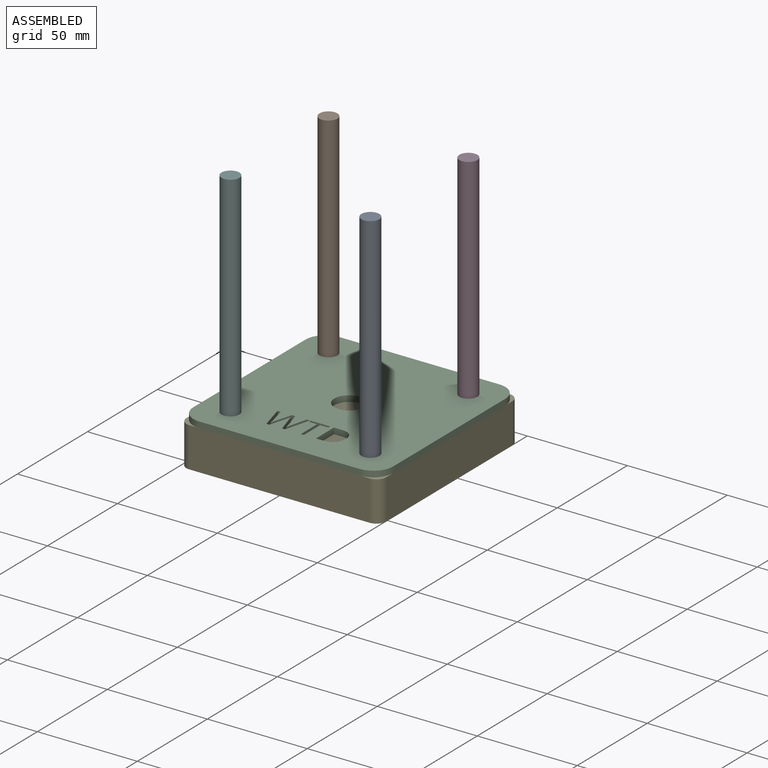
[diagram: assembled view]
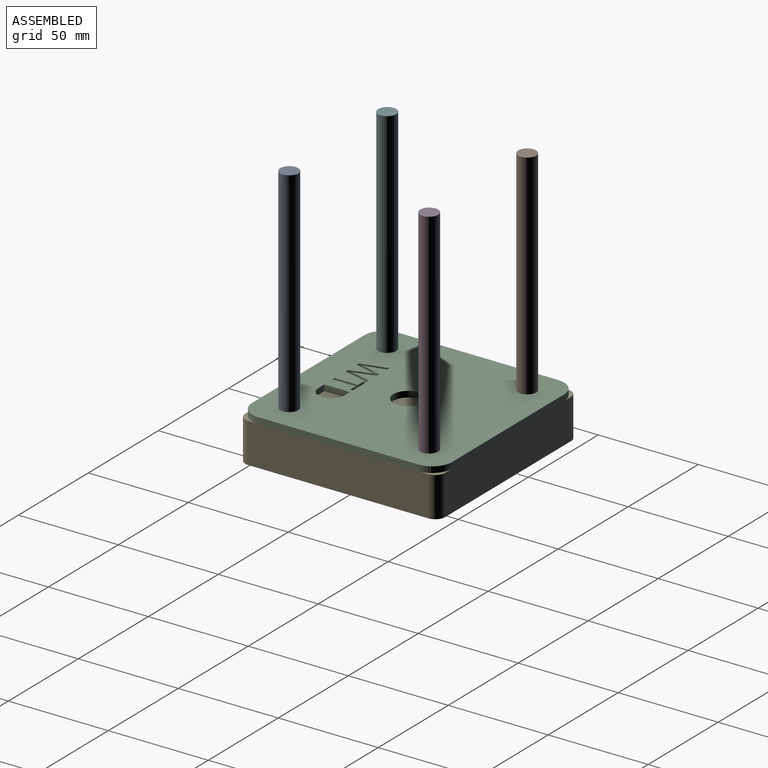
[diagram: assembled view, second angle]
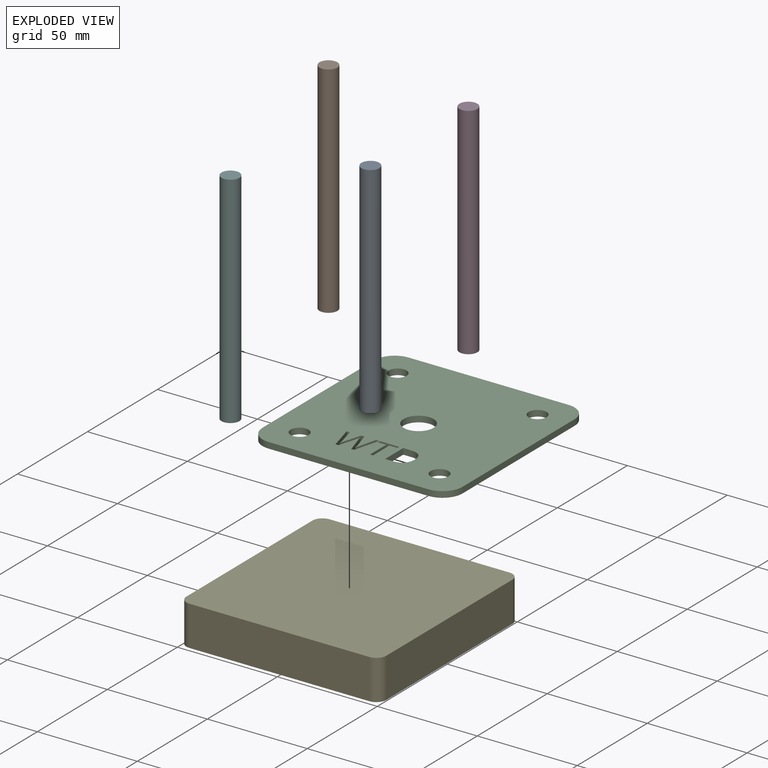
[diagram: exploded view]
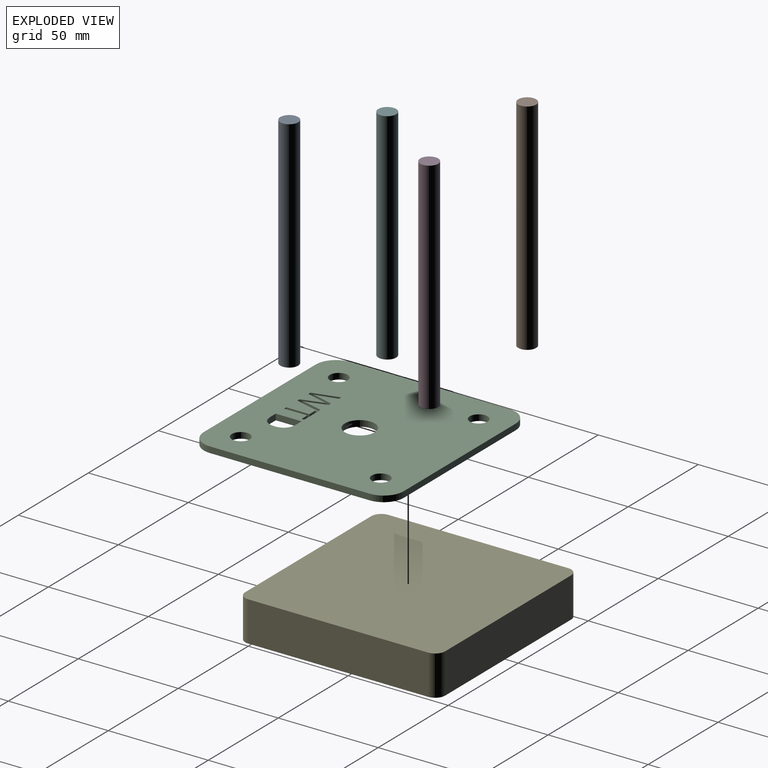
[diagram: exploded view, second angle]
ASSEMBLY  parts=6 mates=5
PART A: 3 faces, bbox 9x9x110 mm
  f0: cylinder r=4.5mm len=110mm, axis (0,0,-1), area 3110.2mm2, adj f1,f2
  f1: plane 9x9mm, normal (0,0,1), area 63.6mm2, adj f0
  f2: plane 9x9mm, normal (0,0,-1), area 63.6mm2, adj f0
PART B: same geometry as A
PART C: 50 faces, bbox 100x100x3 mm
  f0: plane 100x100mm, normal (0,0,1), area 9263.5mm2, adj f2,f3,f4,f5,f6,f7,f8,f9
  f1: plane 100x100mm, normal (0,0,-1), area 9263.5mm2, adj f2,f3,f4,f5,f6,f7,f8,f9
  f2: plane 80x3mm, normal (1,0,0), area 240mm2, adj f0,f1,f3,f10
  f3: cylinder r=10mm len=10mm, axis (0,0,-1), area 47.1mm2, adj f0,f1,f2,f4
  f4: plane 80x3mm, normal (0,1,0), area 240mm2, adj f0,f1,f3,f5
  f5: cylinder r=10mm len=10mm, axis (0,0,-1), area 47.1mm2, adj f0,f1,f4,f6
  f6: plane 80x3mm, normal (-1,0,0), area 240mm2, adj f0,f1,f5,f7
  f7: cylinder r=10mm len=10mm, axis (0,0,-1), area 47.1mm2, adj f0,f1,f6,f8
  f8: plane 80x3mm, normal (0,-1,0), area 240mm2, adj f0,f1,f7,f10
  f9: cylinder r=7.5mm len=15mm, axis (0,0,-1), area 141.4mm2, adj f0,f1
  f10: cylinder r=10mm len=10mm, axis (0,0,-1), area 47.1mm2, adj f0,f1,f2,f8
  f11: cylinder r=4.5mm len=9mm, axis (0,0,1), area 84.8mm2, adj f0,f1
  f12: cylinder r=4.5mm len=9mm, axis (0,0,1), area 84.8mm2, adj f0,f1
  f13: cylinder r=4.5mm len=9mm, axis (0,0,1), area 84.8mm2, adj f0,f1
  f14: cylinder r=4.5mm len=9mm, axis (0,0,1), area 84.8mm2, adj f0,f1
  f15: extruded ~4.89x3mm, area 16mm2, adj f0,f1,f16,f21
  f16: extruded ~4.66x3mm, area 15.3mm2, adj f0,f1,f15,f17
  f17: extruded ~4.68x3mm, area 15.3mm2, adj f0,f1,f16,f18
  f18: plane 3.96x3mm, normal (0,-1,0), area 11.9mm2, adj f0,f1,f17,f19
  f19: plane 12.91x3mm, normal (1,0,0), area 38.7mm2, adj f0,f1,f18,f20
  f20: plane 3.58x3mm, normal (0,1,0), area 10.7mm2, adj f0,f1,f19,f21
  f21: extruded ~4.99x3mm, area 16.2mm2, adj f0,f1,f15,f20
  f22: plane 3x1.5mm, normal (0,1,0), area 4.5mm2, adj f0,f1,f23,f29
  f23: plane 11.58x3mm, normal (-1,0,0), area 34.7mm2, adj f0,f1,f22,f24
  f24: plane 4.09x3mm, normal (0,1,0), area 12.3mm2, adj f0,f1,f23,f25
  f25: plane 3x1.33mm, normal (-1,0,0), area 4mm2, adj f0,f1,f24,f26
  f26: plane 9.68x3mm, normal (0,-1,0), area 29mm2, adj f0,f1,f25,f27
  f27: plane 3x1.33mm, normal (1,0,0), area 4mm2, adj f0,f1,f26,f28
  f28: plane 4.09x3mm, normal (0,1,0), area 12.3mm2, adj f0,f1,f27,f29
  f29: plane 11.58x3mm, normal (1,0,0), area 34.7mm2, adj f0,f1,f22,f28
  f30: plane 3x1.48mm, normal (0,1,0), area 4.5mm2, adj f0,f1,f31,f49
  f31: plane 12.91x3.45mm, normal (-0.97,0.26,0), area 40.1mm2, adj f0,f1,f30,f32
  f32: plane 3x1.59mm, normal (0,-1,0), area 4.8mm2, adj f0,f1,f31,f33
  f33: plane 7.96x3mm, normal (0.97,-0.25,0), area 24.6mm2, adj f0,f1,f32,f34
  f34: extruded ~3.05x3mm, area 9.4mm2, adj f0,f1,f33,f35
  f35: extruded ~3.09x3mm, area 9.5mm2, adj f0,f1,f34,f36
  f36: plane 7.92x3mm, normal (-0.96,-0.29,0), area 24.9mm2, adj f0,f1,f35,f37
  f37: plane 3x1.59mm, normal (0,-1,0), area 4.8mm2, adj f0,f1,f36,f38
  f38: plane 7.85x3mm, normal (0.96,-0.28,0), area 24.5mm2, adj f0,f1,f37,f39
  f39: extruded ~3.16x3mm, area 9.7mm2, adj f0,f1,f38,f40
  f40: extruded ~3.04x3mm, area 9.3mm2, adj f0,f1,f39,f41
  f41: plane 7.97x3mm, normal (-0.97,-0.25,0), area 24.7mm2, adj f0,f1,f40,f42
  f42: plane 3x1.59mm, normal (0,-1,0), area 4.8mm2, adj f0,f1,f41,f43
  f43: plane 12.91x3.44mm, normal (0.97,0.26,0), area 40.1mm2, adj f0,f1,f42,f44
  f44: plane 3x1.48mm, normal (0,1,0), area 4.5mm2, adj f0,f1,f43,f45
  f45: plane 8.59x3mm, normal (-0.96,0.28,0), area 26.9mm2, adj f0,f1,f44,f46
  f46: extruded ~3x2.55mm, area 7.9mm2, adj f0,f1,f45,f47
  f47: extruded ~3x1.05mm, area 3.2mm2, adj f0,f1,f46,f48
  f48: extruded ~3x1.45mm, area 4.5mm2, adj f0,f1,f47,f49
  f49: plane 8.64x3mm, normal (0.96,0.29,0), area 27.1mm2, adj f0,f1,f30,f48
PART D: same geometry as A
PART E: 10 faces, bbox 100x100x20 mm
  f0: plane 90x20mm, normal (1,0,0), area 1800mm2, adj f1,f7,f8,f9
  f1: cylinder r=5mm len=20mm, axis (0,0,-1), area 157.1mm2, adj f0,f2,f8,f9
  f2: plane 90x20mm, normal (0,1,0), area 1800mm2, adj f1,f3,f8,f9
  f3: cylinder r=5mm len=20mm, axis (0,0,-1), area 157.1mm2, adj f2,f4,f8,f9
  f4: plane 90x20mm, normal (-1,0,0), area 1800mm2, adj f3,f5,f8,f9
  f5: cylinder r=5mm len=20mm, axis (0,0,-1), area 157.1mm2, adj f4,f6,f8,f9
  f6: plane 90x20mm, normal (0,-1,0), area 1800mm2, adj f5,f7,f8,f9
  f7: cylinder r=5mm len=20mm, axis (0,0,-1), area 157.1mm2, adj f0,f6,f8,f9
  f8: plane 100x100mm, normal (0,0,1), area 9978.5mm2, adj f0,f1,f2,f3,f4,f5,f6,f7
  f9: plane 100x100mm, normal (0,0,-1), area 9978.5mm2, adj f0,f1,f2,f3,f4,f5,f6,f7
PART F: same geometry as A
PLACE A t=(38.05,-37.85,3.08)mm
PLACE B t=(-31.95,32.15,3.08)mm
PLACE C t=(3.05,-2.85,3.08)mm
PLACE D t=(38.05,32.15,3.08)mm
PLACE E t=(3.05,-2.85,-16.92)mm fixed
PLACE F t=(-31.95,-37.85,3.08)mm
MATE fastened C.f1 <-> E.f8  axis (0,0,-1) through (3.05,-52.85,3.08)mm
MATE fastened F.f0 <-> C.f13  axis (0,0,-1) through (-31.95,-37.85,3.08)mm
MATE fastened D.f0 <-> C.f11  axis (0,0,-1) through (38.05,32.15,3.08)mm
MATE fastened A.f0 <-> C.f12  axis (0,0,-1) through (38.05,-37.85,3.08)mm
MATE fastened B.f0 <-> C.f14  axis (0,0,-1) through (-31.95,32.15,3.08)mm
